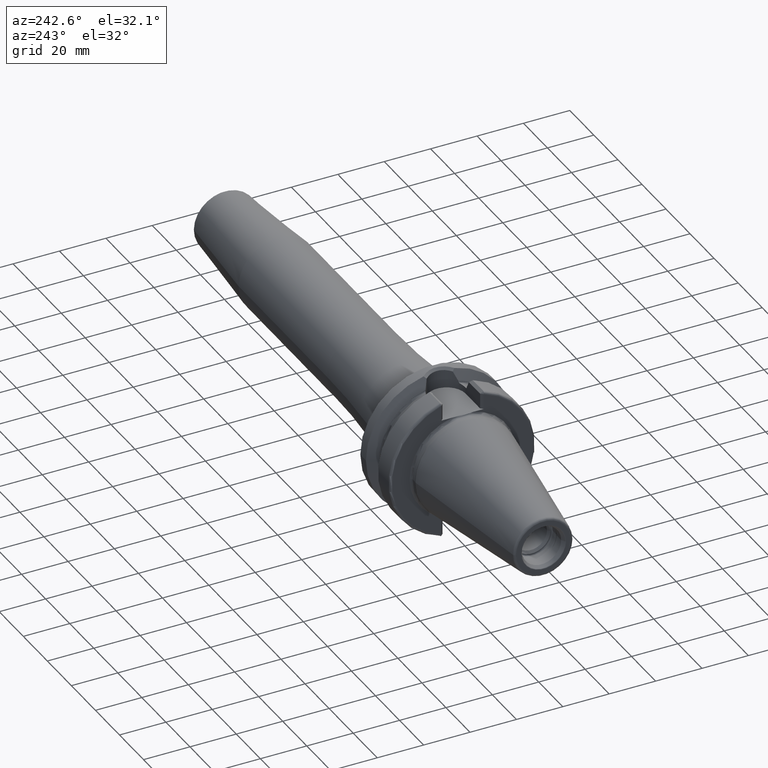
[diagram: clean part render]
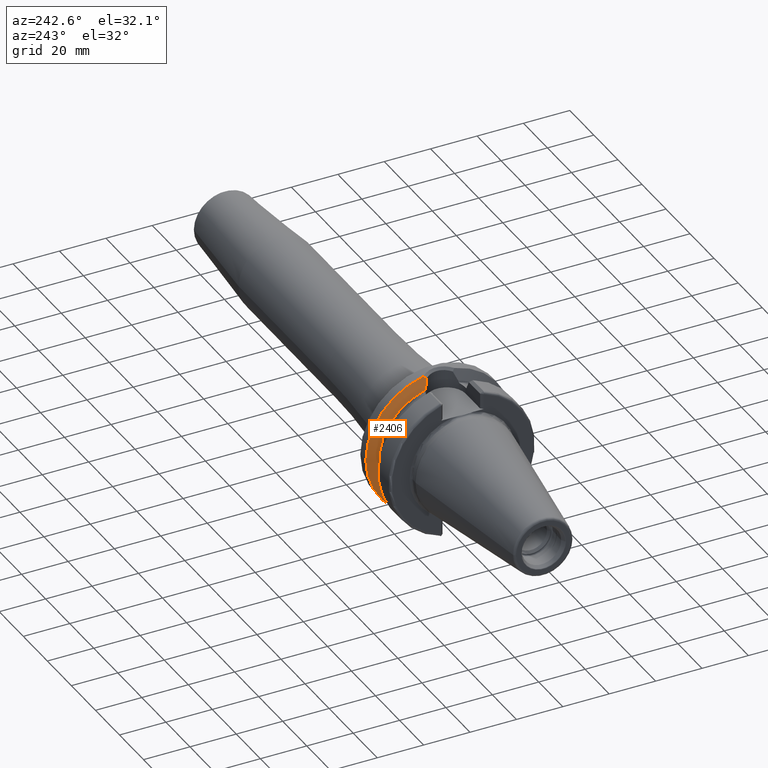
[diagram: same view with one face highlighted and labeled with its STEP entity id]
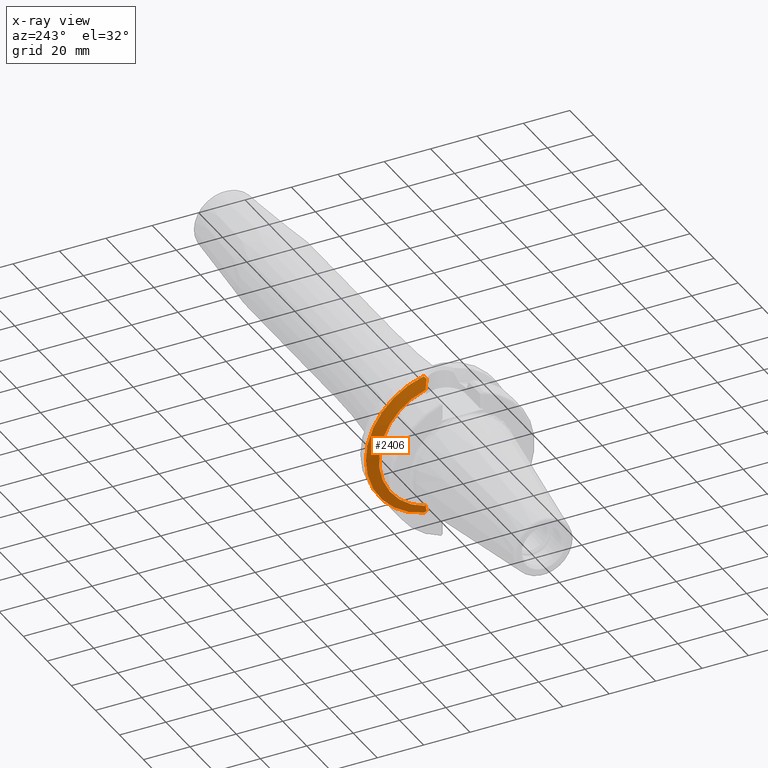
[diagram: x-ray of the same camera — body ghosted, the highlighted face saturated]
A machine part, auxiliary view. The second image highlights one B-rep face of the part: STEP entity #2406.
The next image is the same camera in x-ray: the body ghosted, the highlighted face saturated — about 0% of this face is hidden behind the body in this view.
In plain terms, the highlighted conical surface has half-angle 60 deg.
Its self-contained STEP definition (entity closure, byte-faithful):
#264=CARTESIAN_POINT('',(2.162727746897E1,0.E0,0.E0));
#265=DIRECTION('',(1.E0,0.E0,0.E0));
#266=DIRECTION('',(0.E0,2.025221356988E-1,-9.792776851088E-1));
#267=AXIS2_PLACEMENT_3D('',#264,#265,#266);
#413=CARTESIAN_POINT('',(1.91375E1,7.047603759435E0,-2.624530807186E1));
#414=CARTESIAN_POINT('',(1.926924659829E1,6.973155642658E0,-2.650157525064E1));
#415=CARTESIAN_POINT('',(1.953215093318E1,6.814880472402E0,-2.701339248784E1));
#416=CARTESIAN_POINT('',(1.992520758926E1,6.546145713789E0,-2.777975883833E1));
#417=CARTESIAN_POINT('',(2.031299763175E1,6.245544639533E0,-2.853691128968E1));
#418=CARTESIAN_POINT('',(2.069290284024E1,5.911695129812E0,-2.927960564408E1));
#419=CARTESIAN_POINT('',(2.093808029853E1,5.667101824111E0,-2.975945931955E1));
#420=CARTESIAN_POINT('',(2.105861623912E1,5.538622599637E0,-2.999548645237E1));
#488=CARTESIAN_POINT('',(2.097101805574E1,5.630538071564E0,2.982397761288E1));
#489=CARTESIAN_POINT('',(2.082604881782E1,5.780282855198E0,2.954017722398E1));
#490=CARTESIAN_POINT('',(2.053095055184E1,6.062081832034E0,2.896282820239E1));
#491=CARTESIAN_POINT('',(2.007321533351E1,6.438417817754E0,2.806855111877E1));
#492=CARTESIAN_POINT('',(1.960693883943E1,6.768577999667E0,2.715904469241E1));
#493=CARTESIAN_POINT('',(1.929432982957E1,6.958981467721E0,2.655036595187E1));
#494=CARTESIAN_POINT('',(1.91375E1,7.047603759435E0,2.624530807186E1));
#763=CARTESIAN_POINT('',(1.91375E1,0.E0,0.E0));
#764=DIRECTION('',(-1.E0,0.E0,0.E0));
#765=DIRECTION('',(0.E0,2.593406914876E-1,9.657859005694E-1));
#766=AXIS2_PLACEMENT_3D('',#763,#764,#765);
#780=CARTESIAN_POINT('',(2.105861623912E1,5.538622599637E0,-2.999548645237E1));
#781=CARTESIAN_POINT('',(2.111989614702E1,5.630136295378E0,-3.008652275541E1));
#782=CARTESIAN_POINT('',(2.124372313828E1,5.814239626407E0,-3.027008886976E1));
#783=CARTESIAN_POINT('',(2.143328453670E1,6.093672457464E0,-3.054994203428E1));
#784=CARTESIAN_POINT('',(2.156218936675E1,6.282134222929E0,-3.073948617248E1));
#785=CARTESIAN_POINT('',(2.162727746897E1,6.376915747817E0,-3.083500610986E1));
#787=CARTESIAN_POINT('',(2.162727746897E1,0.E0,0.E0));
#788=DIRECTION('',(1.E0,0.E0,0.E0));
#789=DIRECTION('',(0.E0,1.E0,0.E0));
#790=AXIS2_PLACEMENT_3D('',#787,#788,#789);
#970=CARTESIAN_POINT('',(2.162727746897E1,6.599266458023E0,3.078818504664E1));
#971=CARTESIAN_POINT('',(2.155180167283E1,6.489456770420E0,3.067802487357E1));
#972=CARTESIAN_POINT('',(2.140255803858E1,6.271303447789E0,3.045972360003E1));
#973=CARTESIAN_POINT('',(2.118379105962E1,5.948395649424E0,3.013829699472E1));
#974=CARTESIAN_POINT('',(2.104137401503E1,5.736018183883E0,2.992807656128E1));
#975=CARTESIAN_POINT('',(2.097101805574E1,5.630538071564E0,2.982397761288E1));
#1230=CARTESIAN_POINT('',(1.91375E1,7.047603759435E0,2.624530807186E1));
#1231=CARTESIAN_POINT('',(1.91375E1,7.047603759435E0,-2.624530807186E1));
#1232=VERTEX_POINT('',#1230);
#1233=VERTEX_POINT('',#1231);
#1246=CARTESIAN_POINT('',(2.162727746897E1,3.14875E1,0.E0));
#1247=CARTESIAN_POINT('',(2.162727746897E1,6.599266458023E0,3.078818504664E1));
#1248=VERTEX_POINT('',#1246);
#1249=VERTEX_POINT('',#1247);
#1260=CARTESIAN_POINT('',(2.162727746897E1,6.376915747817E0,-3.083500610986E1));
#1261=VERTEX_POINT('',#1260);
#1351=VERTEX_POINT('',#488);
#1359=VERTEX_POINT('',#420);
#2389=CARTESIAN_POINT('',(2.038238873448E1,0.E0,0.E0));
#2390=DIRECTION('',(1.E0,0.E0,0.E0));
#2391=DIRECTION('',(0.E0,-1.E0,0.E0));
#2392=AXIS2_PLACEMENT_3D('',#2389,#2390,#2391);
#2393=CONICAL_SURFACE('',#2392,2.933128946210E1,6.E1);
#2394=ORIENTED_EDGE('',*,*,#1931,.T.);
#2395=ORIENTED_EDGE('',*,*,#1906,.T.);
#2397=ORIENTED_EDGE('',*,*,#2396,.T.);
#2398=ORIENTED_EDGE('',*,*,#1787,.T.);
#2400=ORIENTED_EDGE('',*,*,#2399,.T.);
#2402=ORIENTED_EDGE('',*,*,#2401,.T.);
#2403=ORIENTED_EDGE('',*,*,#1994,.T.);
#2404=EDGE_LOOP('',(#2394,#2395,#2397,#2398,#2400,#2402,#2403));
#2405=FACE_OUTER_BOUND('',#2404,.F.);
#2406=ADVANCED_FACE('',(#2405),#2393,.T.);
#268=CIRCLE('',#267,3.14875E1);
#421=B_SPLINE_CURVE_WITH_KNOTS('',3,(#413,#414,#415,#416,#417,#418,#419,#420),
.UNSPECIFIED.,.F.,.F.,(4,1,1,1,1,4),(0.E0,2.E-1,4.E-1,6.E-1,8.E-1,1.E0),
.UNSPECIFIED.);
#495=B_SPLINE_CURVE_WITH_KNOTS('',3,(#488,#489,#490,#491,#492,#493,#494),
.UNSPECIFIED.,.F.,.F.,(4,1,1,1,4),(0.E0,2.5E-1,5.E-1,7.5E-1,1.E0),
.UNSPECIFIED.);
#767=CIRCLE('',#766,2.717507892421E1);
#786=B_SPLINE_CURVE_WITH_KNOTS('',3,(#780,#781,#782,#783,#784,#785),
.UNSPECIFIED.,.F.,.F.,(4,1,1,4),(0.E0,3.333333333333E-1,6.666666666667E-1,1.E0),
.UNSPECIFIED.);
#791=CIRCLE('',#790,3.14875E1);
#976=B_SPLINE_CURVE_WITH_KNOTS('',3,(#970,#971,#972,#973,#974,#975),
.UNSPECIFIED.,.F.,.F.,(4,1,1,4),(0.E0,3.333333333333E-1,6.666666666667E-1,1.E0),
.UNSPECIFIED.);
#1787=EDGE_CURVE('',#1261,#1248,#268,.T.);
#1906=EDGE_CURVE('',#1233,#1359,#421,.T.);
#1931=EDGE_CURVE('',#1232,#1233,#767,.T.);
#1994=EDGE_CURVE('',#1351,#1232,#495,.T.);
#2396=EDGE_CURVE('',#1359,#1261,#786,.T.);
#2399=EDGE_CURVE('',#1248,#1249,#791,.T.);
#2401=EDGE_CURVE('',#1249,#1351,#976,.T.);